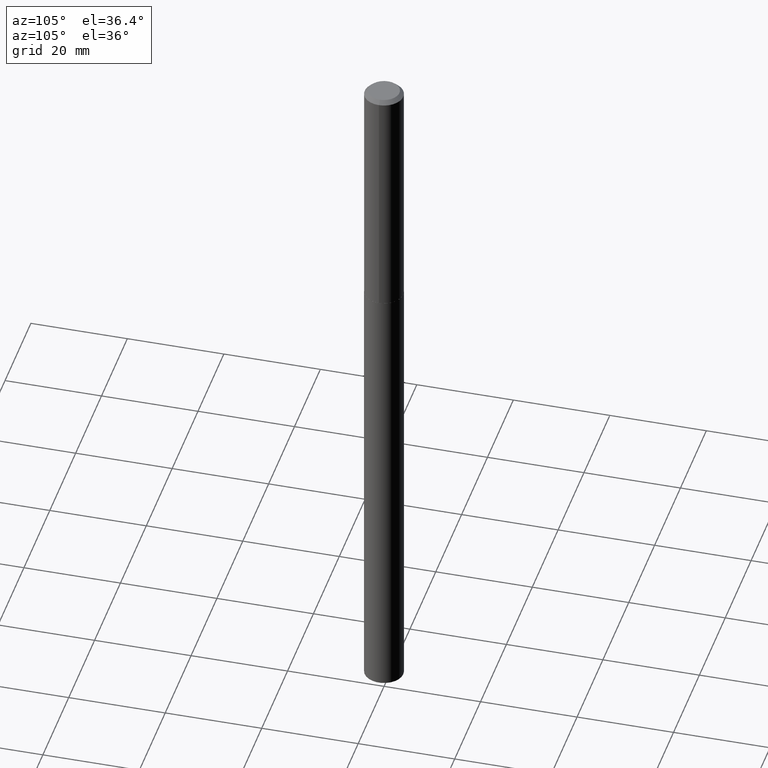
[diagram: clean part render]
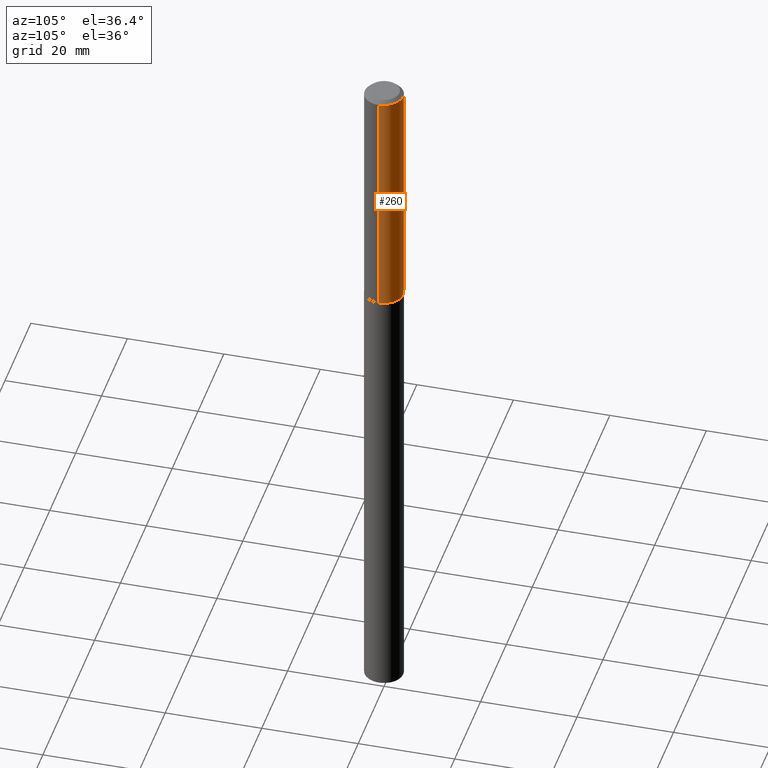
[diagram: same view with one face highlighted and labeled with its STEP entity id]
A machine part, auxiliary view. The second image highlights one B-rep face of the part: STEP entity #260.
In plain terms, the highlighted cylindrical surface (edge-blend (fillet) strip) has radius 4.0005 mm, axis along (-0, 0, 1).
Its self-contained STEP definition (entity closure, byte-faithful):
#21 = CIRCLE ( 'NONE', #99, 0.1575000000000002232 ) ;
#23 = ORIENTED_EDGE ( 'NONE', *, *, #319, .F. ) ;
#26 = DIRECTION ( 'NONE',  ( 1.000000000000000000, -6.982962677686265133E-15, 0.000000000000000000 ) ) ;
#30 = DIRECTION ( 'NONE',  ( 1.000000000000000000, -6.982962677686267499E-15, 4.876176775795936353E-29 ) ) ;
#38 = CARTESIAN_POINT ( 'NONE',  ( 7.642090019328607917E-31, -1.091087918388491006E-16, -0.03125000000000022898 ) ) ;
#55 = FACE_OUTER_BOUND ( 'NONE', #177, .T. ) ;
#56 = CARTESIAN_POINT ( 'NONE',  ( 4.812927157452967257E-29, -6.871584422977194504E-15, -1.968099999999999961 ) ) ;
#71 = AXIS2_PLACEMENT_3D ( 'NONE', #184, #208, #30 ) ;
#77 = EDGE_CURVE ( 'NONE', #141, #143, #21, .T. ) ;
#99 = AXIS2_PLACEMENT_3D ( 'NONE', #56, #151, #26 ) ;
#106 = AXIS2_PLACEMENT_3D ( 'NONE', #38, #352, #318 ) ;
#109 = CARTESIAN_POINT ( 'NONE',  ( -0.1575000000000000844, 1.119104808822158392E-15, -7.747322767151481189E-30 ) ) ;
#111 = ORIENTED_EDGE ( 'NONE', *, *, #242, .T. ) ;
#115 = VERTEX_POINT ( 'NONE', #215 ) ;
#141 = VERTEX_POINT ( 'NONE', #171 ) ;
#143 = VERTEX_POINT ( 'NONE', #192 ) ;
#151 = DIRECTION ( 'NONE',  ( -2.445468806185136597E-29, 3.491481338843145583E-15, 1.000000000000000000 ) ) ;
#156 = CARTESIAN_POINT ( 'NONE',  ( -0.1575000000000000011, -2.371241798585862621E-15, -0.03125000000000022898 ) ) ;
#164 = CIRCLE ( 'NONE', #106, 0.1575000000000000011 ) ;
#171 = CARTESIAN_POINT ( 'NONE',  ( 0.1575000000000002232, -7.971401044712782773E-15, -1.968099999999999961 ) ) ;
#177 = EDGE_LOOP ( 'NONE', ( #235, #111, #23, #385 ) ) ;
#184 = CARTESIAN_POINT ( 'NONE',  ( 0.000000000000000000, 0.000000000000000000, 0.000000000000000000 ) ) ;
#186 = EDGE_CURVE ( 'NONE', #141, #115, #198, .T. ) ;
#192 = CARTESIAN_POINT ( 'NONE',  ( -0.1575000000000002232, -5.752479614155035323E-15, -1.968099999999999961 ) ) ;
#195 = DIRECTION ( 'NONE',  ( -2.445468806185136877E-29, 3.491481338843145188E-15, 1.000000000000000000 ) ) ;
#198 = LINE ( 'NONE', #294, #232 ) ;
#208 = DIRECTION ( 'NONE',  ( -2.445468806185136597E-29, 3.491481338843145583E-15, 1.000000000000000000 ) ) ;
#215 = CARTESIAN_POINT ( 'NONE',  ( 0.1575000000000000011, -1.208925413574435989E-15, -0.03125000000000022898 ) ) ;
#232 = VECTOR ( 'NONE', #195, 39.37007874015748143 ) ;
#235 = ORIENTED_EDGE ( 'NONE', *, *, #77, .T. ) ;
#242 = EDGE_CURVE ( 'NONE', #143, #303, #257, .T. ) ;
#257 = LINE ( 'NONE', #109, #270 ) ;
#260 = ADVANCED_FACE ( 'NONE', ( #55 ), #351, .T. ) ;
#270 = VECTOR ( 'NONE', #357, 39.37007874015748143 ) ;
#294 = CARTESIAN_POINT ( 'NONE',  ( 0.1575000000000000844, -1.099816621735587677E-15, 7.679978421878603638E-30 ) ) ;
#303 = VERTEX_POINT ( 'NONE', #156 ) ;
#318 = DIRECTION ( 'NONE',  ( 1.000000000000000000, -6.982962677686265922E-15, 0.000000000000000000 ) ) ;
#319 = EDGE_CURVE ( 'NONE', #115, #303, #164, .T. ) ;
#351 = CYLINDRICAL_SURFACE ( 'NONE', #71, 0.1575000000000000844 ) ;
#352 = DIRECTION ( 'NONE',  ( -2.445468806185136597E-29, 3.491481338843145583E-15, 1.000000000000000000 ) ) ;
#357 = DIRECTION ( 'NONE',  ( -2.445468806185136877E-29, 3.491481338843145188E-15, 1.000000000000000000 ) ) ;
#385 = ORIENTED_EDGE ( 'NONE', *, *, #186, .F. ) ;